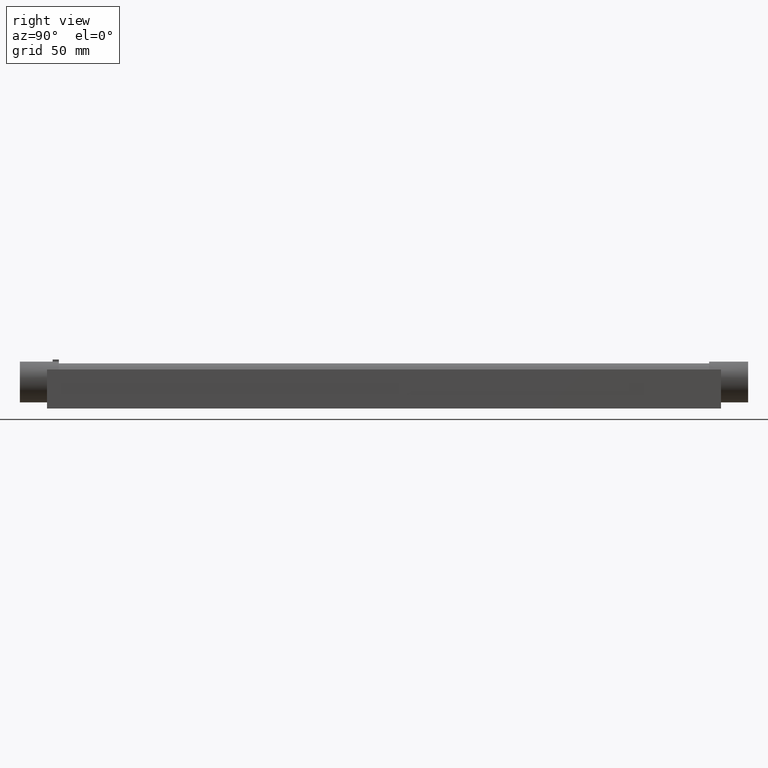
[diagram: clean part render]
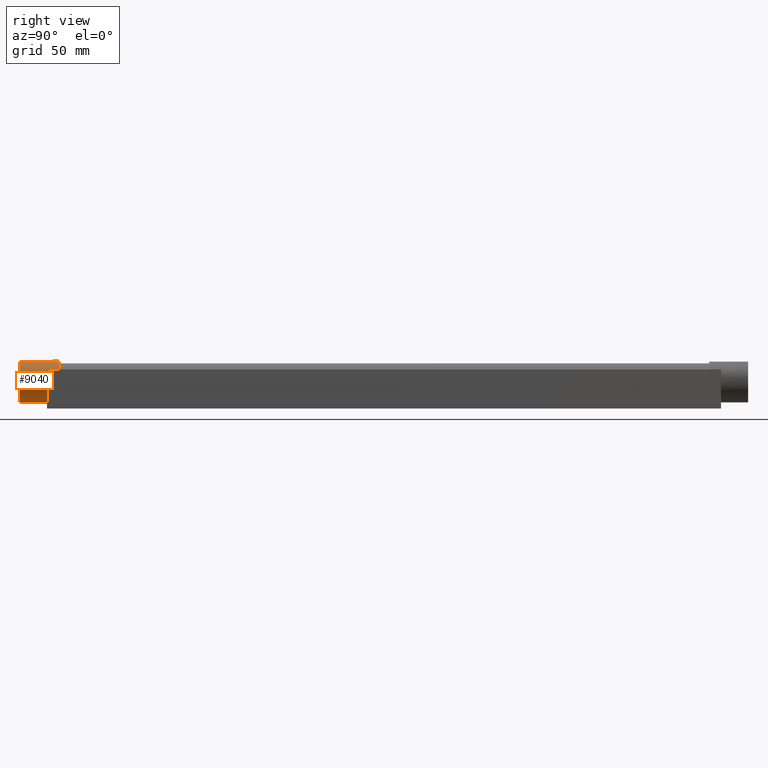
[diagram: same view with one face highlighted and labeled with its STEP entity id]
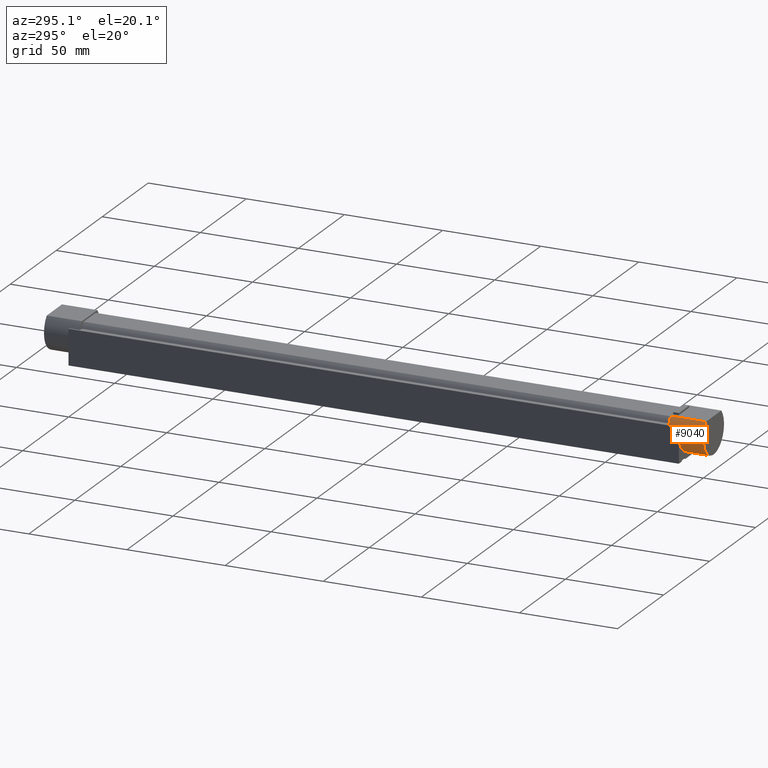
[diagram: same view with one face highlighted and labeled with its STEP entity id]
A machine part, right view. The second image highlights one B-rep face of the part: STEP entity #9040.
A second angle (auxiliary view) of the same face is appended — the face is thin or edge-on in the first view.
In plain terms, the highlighted cylindrical surface (edge-blend (fillet) strip) has radius 11.2492 mm, axis along (0, -1, 0).
Its self-contained STEP definition (entity closure, byte-faithful):
#120=CARTESIAN_POINT('',(12.5,10.514041296652,-22.));
#130=VERTEX_POINT('',#120);
#160=CARTESIAN_POINT('',(13.7200045691454,10.514041296652,-22.));
#170=DIRECTION('',(-1.,0.,0.));
#180=VECTOR('',#170,1.);
#190=LINE('',#160,#180);
#200=CARTESIAN_POINT('',(18.0000000000001,10.514041296652,-22.));
#210=VERTEX_POINT('',#200);
#220=EDGE_CURVE('',#210,#130,#190,.T.);
#910=CARTESIAN_POINT('',(12.5,-11.2492250572074,-18.));
#920=VERTEX_POINT('',#910);
#950=CARTESIAN_POINT('',(12.5,-10.514041296652,-22.));
#960=VERTEX_POINT('',#950);
#990=CARTESIAN_POINT('',(12.5,0.,-18.));
#1000=DIRECTION('',(-1.,0.,0.));
#1010=DIRECTION('',(0.,0.,1.));
#1020=AXIS2_PLACEMENT_3D('',#990,#1000,#1010);
#1030=CIRCLE('',#1020,11.2492250572074);
#1040=EDGE_CURVE('',#960,#920,#1030,.T.);
#1630=CARTESIAN_POINT('',(12.5,11.2492250572074,-18.));
#1640=VERTEX_POINT('',#1630);
#1650=EDGE_CURVE('',#1640,#130,#1030,.T.);
#3250=CARTESIAN_POINT('',(1.77635683940025E-15,-8.29004981596239,
-25.6039554467767));
#3260=VERTEX_POINT('',#3250);
#3270=CARTESIAN_POINT('',(1.73472347597681E-15,8.29004981596238,
-25.6039554467767));
#3280=VERTEX_POINT('',#3270);
#3310=CARTESIAN_POINT('',(1.95399252334028E-14,0.,-18.));
#3320=DIRECTION('',(-1.,0.,0.));
#3330=DIRECTION('',(0.,-0.736944080485875,-0.675953713087537));
#3340=AXIS2_PLACEMENT_3D('',#3310,#3320,#3330);
#3350=CIRCLE('',#3340,11.2492250572074);
#3360=EDGE_CURVE('',#3260,#3280,#3350,.T.);
#5190=EDGE_CURVE('',#920,#1640,#1030,.T.);
#5750=CARTESIAN_POINT('',(18.0000000000001,0.,-18.));
#5760=DIRECTION('',(1.,0.,0.));
#5770=DIRECTION('',(0.,4.7372778934549E-16,1.));
#5780=AXIS2_PLACEMENT_3D('',#5750,#5760,#5770);
#5790=CIRCLE('',#5780,11.2492250572074);
#5800=CARTESIAN_POINT('',(18.0000000000001,8.29004981596238,
-25.6039554467767));
#5810=VERTEX_POINT('',#5800);
#5820=EDGE_CURVE('',#5810,#210,#5790,.T.);
#5930=CARTESIAN_POINT('',(18.0000000000001,-8.29004981596239,
-25.6039554467767));
#5940=VERTEX_POINT('',#5930);
#5970=CARTESIAN_POINT('',(18.0000000000001,-10.514041296652,-22.));
#5980=VERTEX_POINT('',#5970);
#5990=EDGE_CURVE('',#5980,#5940,#5790,.T.);
#8720=CARTESIAN_POINT('',(13.7200045691454,0.,-18.));
#8730=DIRECTION('',(-1.,0.,0.));
#8740=DIRECTION('',(0.,0.,1.));
#8750=AXIS2_PLACEMENT_3D('',#8720,#8730,#8740);
#8760=CYLINDRICAL_SURFACE('',#8750,11.2492250572074);
#8770=ORIENTED_EDGE('',*,*,#3360,.F.);
#8780=CARTESIAN_POINT('',(18.0000000000001,8.29004981596238,
-25.6039554467767));
#8790=DIRECTION('',(-1.,0.,0.));
#8800=VECTOR('',#8790,1.);
#8810=LINE('',#8780,#8800);
#8820=EDGE_CURVE('',#5810,#3280,#8810,.T.);
#8830=ORIENTED_EDGE('',*,*,#8820,.T.);
#8840=ORIENTED_EDGE('',*,*,#5820,.F.);
#8850=ORIENTED_EDGE('',*,*,#220,.F.);
#8860=ORIENTED_EDGE('',*,*,#1650,.T.);
#8870=ORIENTED_EDGE('',*,*,#5190,.T.);
#8880=ORIENTED_EDGE('',*,*,#1040,.T.);
#8890=CARTESIAN_POINT('',(13.7200045691454,-10.514041296652,-22.));
#8900=DIRECTION('',(-1.,0.,0.));
#8910=VECTOR('',#8900,1.);
#8920=LINE('',#8890,#8910);
#8930=EDGE_CURVE('',#5980,#960,#8920,.T.);
#8940=ORIENTED_EDGE('',*,*,#8930,.T.);
#8950=ORIENTED_EDGE('',*,*,#5990,.F.);
#8960=CARTESIAN_POINT('',(1.24344978758018E-14,-8.29004981596239,
-25.6039554467767));
#8970=DIRECTION('',(1.,0.,0.));
#8980=VECTOR('',#8970,1.);
#8990=LINE('',#8960,#8980);
#9000=EDGE_CURVE('',#3260,#5940,#8990,.T.);
#9010=ORIENTED_EDGE('',*,*,#9000,.T.);
#9020=EDGE_LOOP('',(#9010,#8950,#8940,#8880,#8870,#8860,#8850,#8840,
#8830,#8770));
#9030=FACE_OUTER_BOUND('',#9020,.T.);
#9040=ADVANCED_FACE('',(#9030),#8760,.T.);